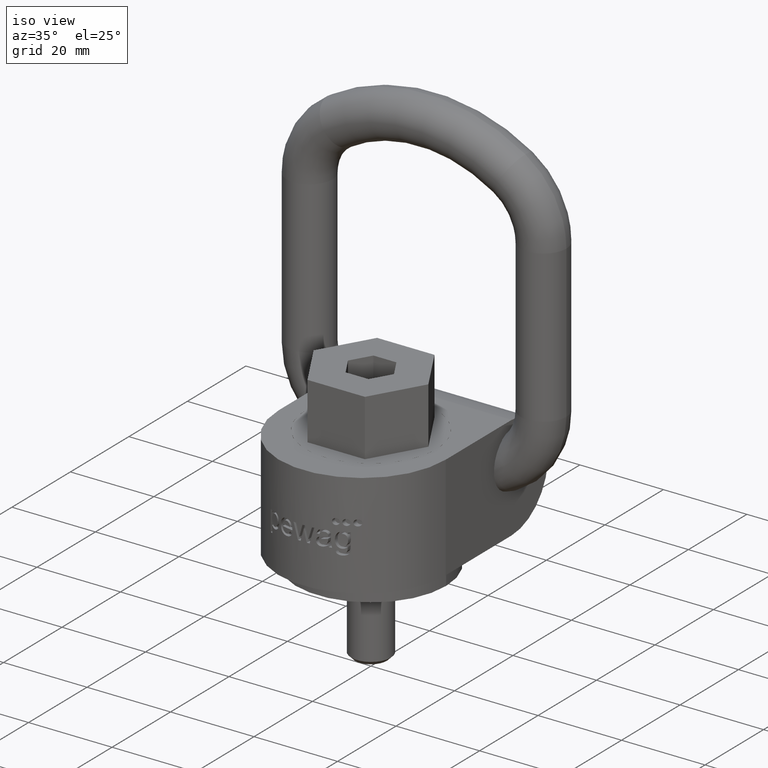
[diagram: clean part render]
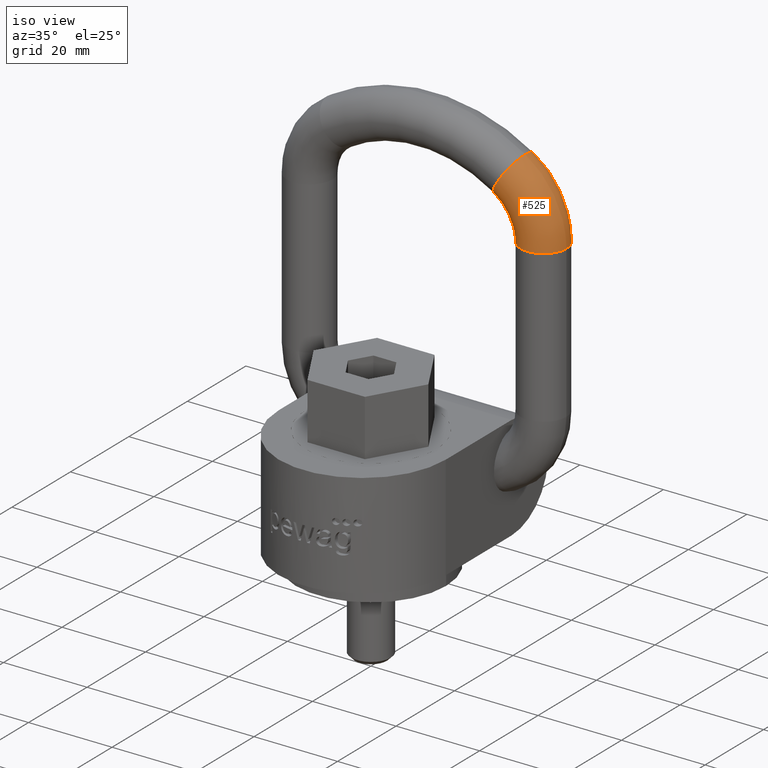
[diagram: same view with one face highlighted and labeled with its STEP entity id]
A machine part, iso view. The second image highlights one B-rep face of the part: STEP entity #525.
In plain terms, the highlighted toroidal blend (fillet) surface has major radius 15.5 mm and minor (blend) radius 5.5 mm.
Its self-contained STEP definition (entity closure, byte-faithful):
#235=TOROIDAL_SURFACE('',#2540,15.5,5.5);
#525=ADVANCED_FACE('',(#613,#614),#235,.T.);
#613=FACE_BOUND('',#775,.T.);
#614=FACE_BOUND('',#776,.T.);
#775=EDGE_LOOP('',(#1716));
#776=EDGE_LOOP('',(#1717));
#1110=CIRCLE('',#2537,5.5);
#1111=CIRCLE('',#2539,5.5);
#1716=ORIENTED_EDGE('',*,*,#2232,.F.);
#1717=ORIENTED_EDGE('',*,*,#2233,.T.);
#1928=VERTEX_POINT('',#5188);
#1929=VERTEX_POINT('',#5191);
#2232=EDGE_CURVE('',#1928,#1928,#1110,.T.);
#2233=EDGE_CURVE('',#1929,#1929,#1111,.T.);
#2537=AXIS2_PLACEMENT_3D('',#5187,#2971,#2972);
#2539=AXIS2_PLACEMENT_3D('',#5190,#2975,#2976);
#2540=AXIS2_PLACEMENT_3D('',#5192,#2977,#2978);
#2971=DIRECTION('',(-0.846797818814145,0.,0.531914893617021));
#2972=DIRECTION('',(0.531914893617021,0.,0.846797818814146));
#2975=DIRECTION('',(6.77576192227313E-16,0.,1.));
#2976=DIRECTION('',(1.,0.,0.));
#2977=DIRECTION('',(0.,1.,0.));
#2978=DIRECTION('',(0.,0.,1.));
#5187=CARTESIAN_POINT('',(20.7446808510638,19.,79.0251149337516));
#5188=CARTESIAN_POINT('',(23.6702127659575,19.,83.6825029372294));
#5190=CARTESIAN_POINT('',(28.,19.,65.8997487421324));
#5191=CARTESIAN_POINT('',(33.5,19.,65.8997487421324));
#5192=CARTESIAN_POINT('',(12.5,19.,65.8997487421324));